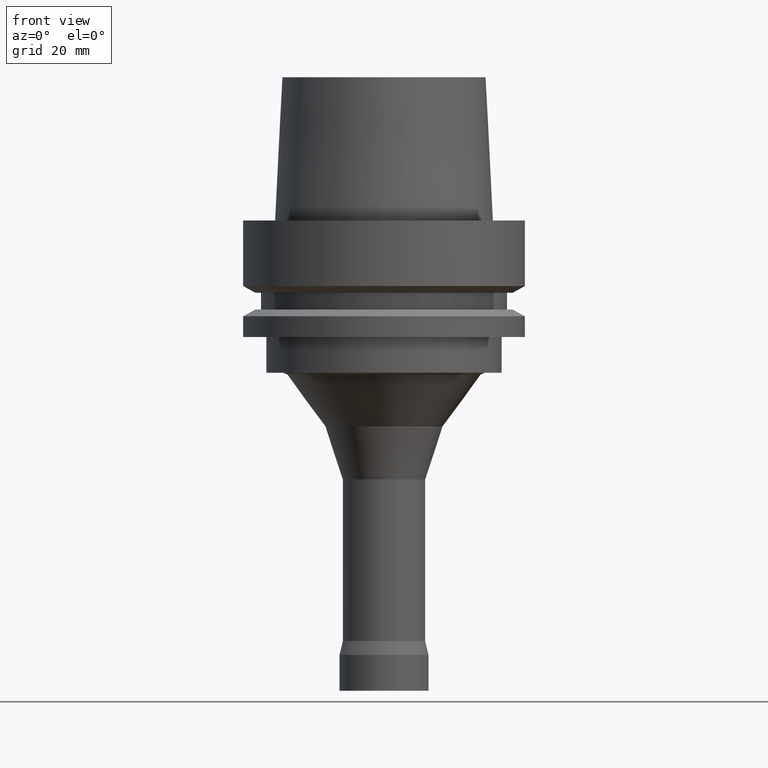
[diagram: clean part render]
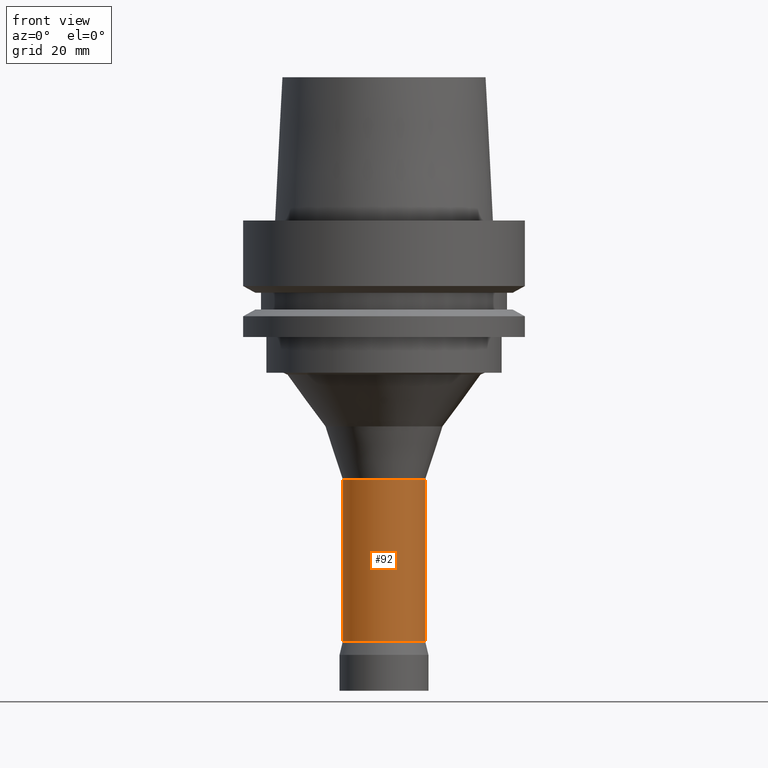
[diagram: same view with one face highlighted and labeled with its STEP entity id]
A machine part, front view. The second image highlights one B-rep face of the part: STEP entity #92.
In plain terms, the highlighted cylindrical surface (bore or boss wall) has radius 9.25 mm, axis along (-0, -0, 1).
Its self-contained STEP definition (entity closure, byte-faithful):
#92=ADVANCED_FACE('',(#145,#146),#147,.T.);
#145=FACE_BOUND('',#203,.T.);
#146=FACE_BOUND('',#204,.T.);
#147=CYLINDRICAL_SURFACE('',#205,9.25);
#203=EDGE_LOOP('',(#295));
#204=EDGE_LOOP('',(#296));
#205=AXIS2_PLACEMENT_3D('',#297,#298,#299);
#295=ORIENTED_EDGE('',*,*,#327,.F.);
#296=ORIENTED_EDGE('',*,*,#326,.T.);
#297=CARTESIAN_POINT('',(4.64486853504832E-015,9.28973707009663E-015,-75.85645981));
#298=DIRECTION('',(-6.12323399573677E-017,-1.22464679914735E-016,1.0));
#299=DIRECTION('',(-1.23259516440783E-032,1.0,1.22464679914735E-016));
#326=EDGE_CURVE('',#361,#361,#362,.T.);
#327=EDGE_CURVE('',#363,#363,#364,.T.);
#361=VERTEX_POINT('',#399);
#362=CIRCLE('',#400,9.25);
#363=VERTEX_POINT('',#401);
#364=CIRCLE('',#402,9.25);
#399=CARTESIAN_POINT('',(3.54150675213045E-015,9.25000000000001,-57.83719444));
#400=AXIS2_PLACEMENT_3D('',#453,#454,#455);
#401=CARTESIAN_POINT('',(5.74823031796618E-015,9.25000000000001,-93.87572518));
#402=AXIS2_PLACEMENT_3D('',#456,#457,#458);
#453=CARTESIAN_POINT('',(3.54150675213045E-015,7.08301350426091E-015,-57.83719444));
#454=DIRECTION('',(6.12323399573677E-017,1.22464679914735E-016,-1.0));
#455=DIRECTION('',(-1.23259516440783E-032,1.0,1.22464679914735E-016));
#456=CARTESIAN_POINT('',(5.74823031796618E-015,1.14964606359324E-014,-93.87572518));
#457=DIRECTION('',(6.12323399573677E-017,1.22464679914735E-016,-1.0));
#458=DIRECTION('',(-1.23259516440783E-032,1.0,1.22464679914735E-016));